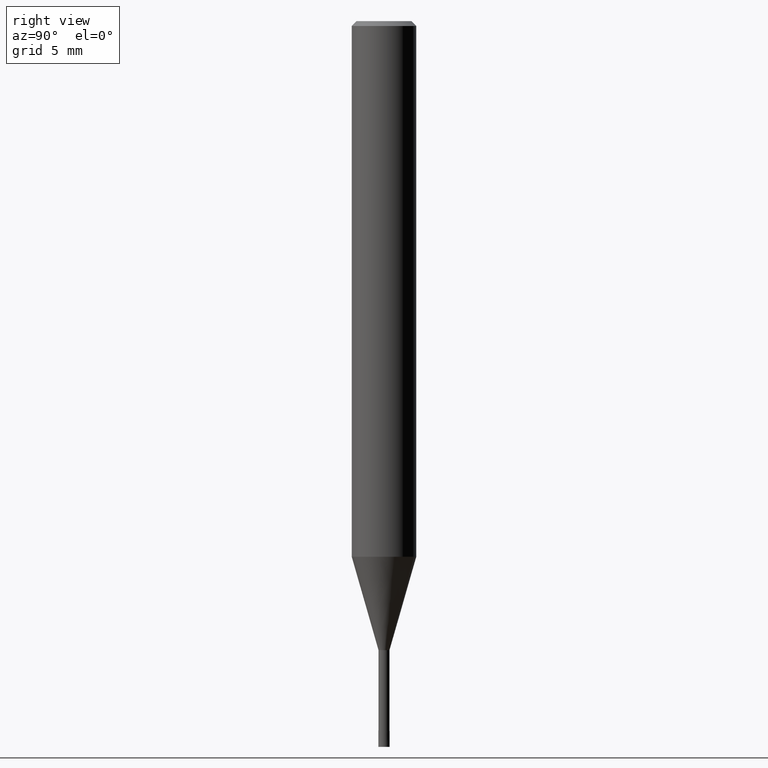
[diagram: clean part render]
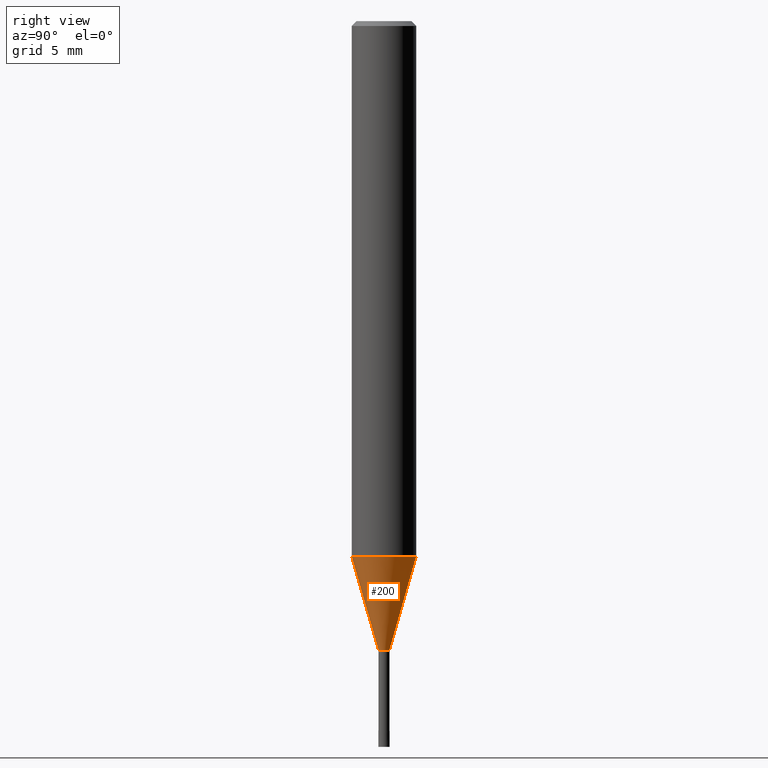
[diagram: same view with one face highlighted and labeled with its STEP entity id]
A machine part, right view. The second image highlights one B-rep face of the part: STEP entity #200.
In plain terms, the highlighted conical surface has half-angle 16 deg.
Its self-contained STEP definition (entity closure, byte-faithful):
#94=VERTEX_POINT('',#231);
#116=EDGE_CURVE('',#94,#146,#254,.T.);
#146=VERTEX_POINT('',#288);
#148=VERTEX_POINT('',#290);
#160=EDGE_CURVE('',#94,#148,#304,.T.);
#176=VERTEX_POINT('',#320);
#184=EDGE_CURVE('',#176,#148,#329,.T.);
#200=ADVANCED_FACE('',(#350),#351,.T.);
#208=EDGE_CURVE('',#146,#176,#361,.T.);
#231=CARTESIAN_POINT('',(0.0,1.99995,-33.211));
#254=LINE('',#406,#407);
#288=CARTESIAN_POINT('',(0.0,0.33995,-39.0));
#290=CARTESIAN_POINT('',(2.44915147732706E-016,-1.99995,-33.211));
#304=CIRCLE('',#471,1.99995);
#320=CARTESIAN_POINT('',(4.16304929981917E-017,-0.33995,-39.0));
#329=LINE('',#502,#503);
#350=FACE_OUTER_BOUND('',#526,.T.);
#351=CONICAL_SURFACE('',#527,1.16995,0.279257622355071);
#361=CIRCLE('',#540,0.33995);
#406=CARTESIAN_POINT('',(-1.43272820365449E-016,1.16995,-36.1055));
#407=VECTOR('',#565,1.0);
#471=AXIS2_PLACEMENT_3D('',#629,#630,#631);
#502=CARTESIAN_POINT('',(1.43272820365449E-016,-1.16995,-36.1055));
#503=VECTOR('',#649,1.0);
#526=EDGE_LOOP('',(#689,#690,#691,#692));
#527=AXIS2_PLACEMENT_3D('',#693,#694,#695);
#540=AXIS2_PLACEMENT_3D('',#711,#712,#713);
#565=DIRECTION('',(3.37553074882733E-017,-0.275642106403519,-0.961260333716851));
#629=CARTESIAN_POINT('',(0.0,0.0,-33.211));
#630=DIRECTION('',(0.0,0.0,-1.0));
#631=DIRECTION('',(0.0,1.0,0.0));
#649=DIRECTION('',(3.37553074882733E-017,-0.275642106403519,0.961260333716851));
#689=ORIENTED_EDGE('',*,*,#116,.F.);
#690=ORIENTED_EDGE('',*,*,#160,.T.);
#691=ORIENTED_EDGE('',*,*,#184,.F.);
#692=ORIENTED_EDGE('',*,*,#208,.F.);
#693=CARTESIAN_POINT('',(0.0,0.0,-36.1055));
#694=DIRECTION('',(-0.0,-0.0,1.0));
#695=DIRECTION('',(0.0,1.0,0.0));
#711=CARTESIAN_POINT('',(0.0,0.0,-39.0));
#712=DIRECTION('',(0.0,0.0,-1.0));
#713=DIRECTION('',(0.0,1.0,0.0));